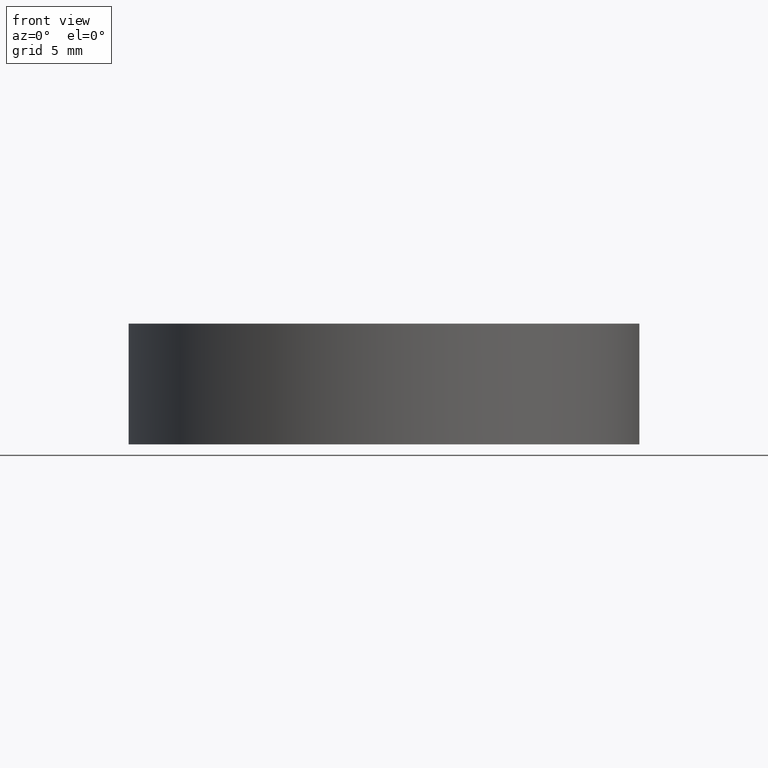
[diagram: clean part render]
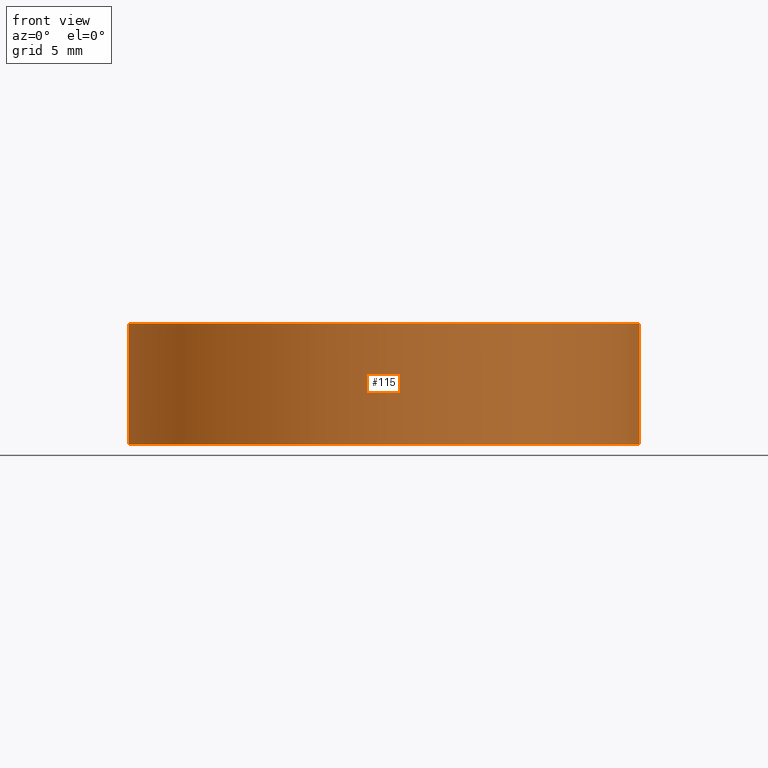
[diagram: same view with one face highlighted and labeled with its STEP entity id]
A machine part, front view. The second image highlights one B-rep face of the part: STEP entity #115.
In plain terms, the highlighted cylindrical surface (partial cylindrical patch) has radius 12.7 mm, axis along (-0, -0, -1).
Its self-contained STEP definition (entity closure, byte-faithful):
#1 = CARTESIAN_POINT ( 'NONE',  ( -12.69999999990683293, 0.000000000000000000, 6.000000000000227374 ) ) ;
#14 = DIRECTION ( 'NONE',  ( -0.000000000000000000, -0.000000000000000000, -1.000000000000000000 ) ) ;
#15 = CARTESIAN_POINT ( 'NONE',  ( -12.69999999999999929, 0.000000000000000000, 0.000000000000000000 ) ) ;
#23 = CIRCLE ( 'NONE', #163, 12.69999999999999929 ) ;
#31 = AXIS2_PLACEMENT_3D ( 'NONE', #127, #164, #147 ) ;
#32 = FACE_OUTER_BOUND ( 'NONE', #49, .T. ) ;
#34 = DIRECTION ( 'NONE',  ( -0.000000000000000000, -0.000000000000000000, -1.000000000000000000 ) ) ;
#42 = AXIS2_PLACEMENT_3D ( 'NONE', #94, #34, #143 ) ;
#43 = CARTESIAN_POINT ( 'NONE',  ( 12.69999999999999929, 1.555301434917138433E-15, 6.000000000000000000 ) ) ;
#49 = EDGE_LOOP ( 'NONE', ( #179, #79, #169, #131 ) ) ;
#54 = DIRECTION ( 'NONE',  ( -0.000000000000000000, -0.000000000000000000, -1.000000000000000000 ) ) ;
#62 = CYLINDRICAL_SURFACE ( 'NONE', #42, 12.69999999999999929 ) ;
#79 = ORIENTED_EDGE ( 'NONE', *, *, #114, .T. ) ;
#80 = EDGE_CURVE ( 'NONE', #83, #109, #23, .T. ) ;
#83 = VERTEX_POINT ( 'NONE', #15 ) ;
#84 = VECTOR ( 'NONE', #54, 1000.000000000000000 ) ;
#88 = LINE ( 'NONE', #43, #84 ) ;
#93 = CIRCLE ( 'NONE', #31, 12.69999999990744755 ) ;
#94 = CARTESIAN_POINT ( 'NONE',  ( 0.000000000000000000, 0.000000000000000000, 6.000000000000000000 ) ) ;
#97 = CARTESIAN_POINT ( 'NONE',  ( 12.69999999990806039, 1.555301434911509121E-15, 6.000000000000227374 ) ) ;
#109 = VERTEX_POINT ( 'NONE', #166 ) ;
#110 = DIRECTION ( 'NONE',  ( 1.000000000000000000, 0.000000000000000000, 0.000000000000000000 ) ) ;
#114 = EDGE_CURVE ( 'NONE', #141, #116, #93, .T. ) ;
#115 = ADVANCED_FACE ( 'NONE', ( #32 ), #62, .T. ) ;
#116 = VERTEX_POINT ( 'NONE', #1 ) ;
#119 = EDGE_CURVE ( 'NONE', #116, #83, #182, .T. ) ;
#127 = CARTESIAN_POINT ( 'NONE',  ( 6.140921104957897114E-13, 0.000000000000000000, 6.000000000000227374 ) ) ;
#131 = ORIENTED_EDGE ( 'NONE', *, *, #80, .T. ) ;
#141 = VERTEX_POINT ( 'NONE', #97 ) ;
#143 = DIRECTION ( 'NONE',  ( -1.000000000000000000, 0.000000000000000000, 0.000000000000000000 ) ) ;
#147 = DIRECTION ( 'NONE',  ( 1.000000000000000000, 0.000000000000000000, 0.000000000000000000 ) ) ;
#162 = DIRECTION ( 'NONE',  ( 0.000000000000000000, 0.000000000000000000, 1.000000000000000000 ) ) ;
#163 = AXIS2_PLACEMENT_3D ( 'NONE', #196, #162, #110 ) ;
#164 = DIRECTION ( 'NONE',  ( -0.000000000000000000, -0.000000000000000000, -1.000000000000000000 ) ) ;
#166 = CARTESIAN_POINT ( 'NONE',  ( 12.69999999999999929, 1.555301434917138433E-15, 0.000000000000000000 ) ) ;
#167 = CARTESIAN_POINT ( 'NONE',  ( -12.69999999999999929, 0.000000000000000000, 6.000000000000000000 ) ) ;
#169 = ORIENTED_EDGE ( 'NONE', *, *, #119, .T. ) ;
#179 = ORIENTED_EDGE ( 'NONE', *, *, #192, .F. ) ;
#182 = LINE ( 'NONE', #167, #189 ) ;
#189 = VECTOR ( 'NONE', #14, 1000.000000000000000 ) ;
#192 = EDGE_CURVE ( 'NONE', #141, #109, #88, .T. ) ;
#196 = CARTESIAN_POINT ( 'NONE',  ( 0.000000000000000000, 0.000000000000000000, 0.000000000000000000 ) ) ;